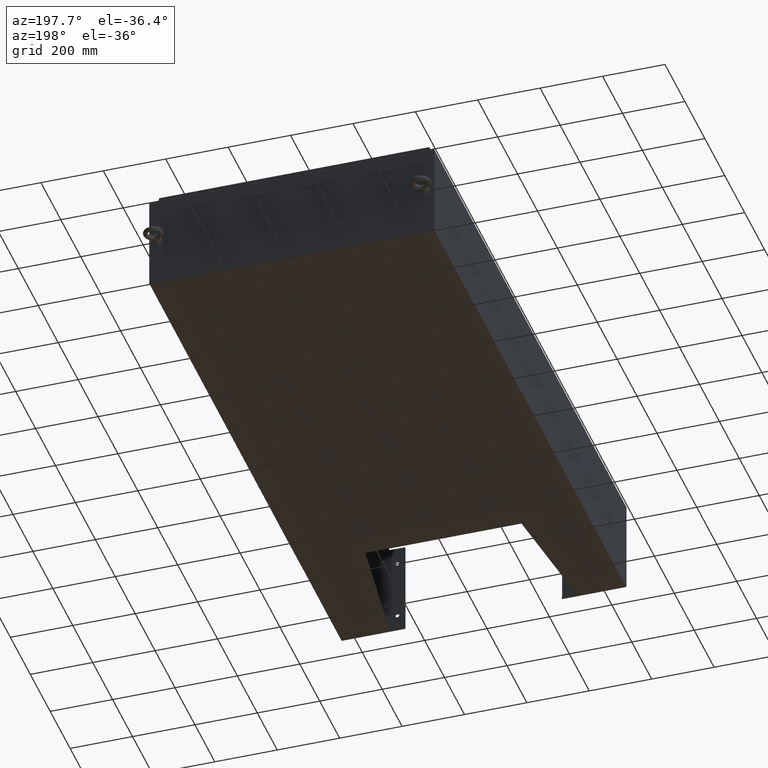
[diagram: clean part render]
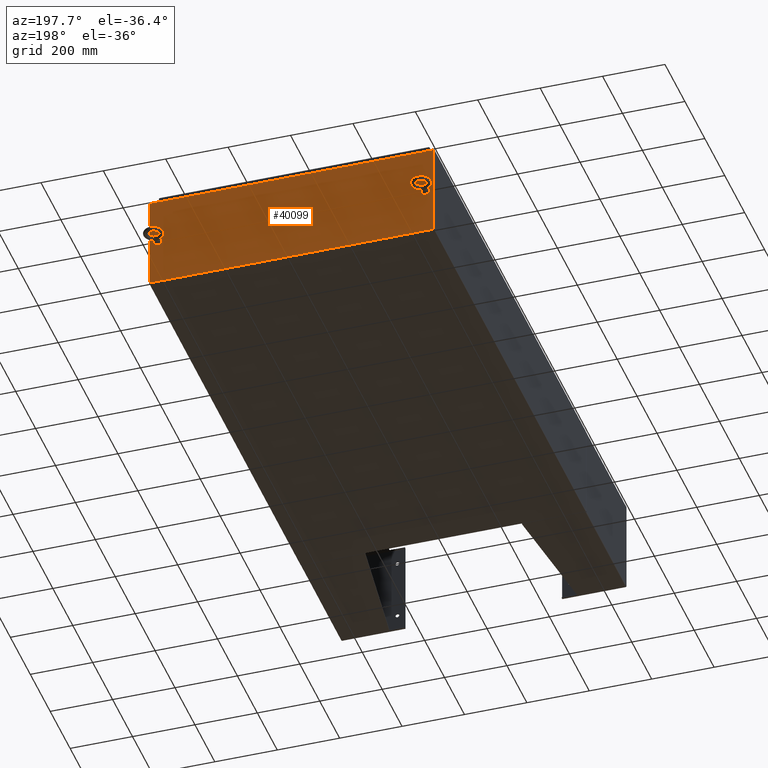
[diagram: same view with one face highlighted and labeled with its STEP entity id]
A machine part, auxiliary view. The second image highlights one B-rep face of the part: STEP entity #40099.
In plain terms, the highlighted planar face has unit normal (0, -1, 0).
Its self-contained STEP definition (entity closure, byte-faithful):
#613 = LINE ( 'NONE', #57201, #60344 ) ;
#780 = CARTESIAN_POINT ( 'NONE',  ( 17.92530000000000400, 0.0000000000000000000, 5.925300000000000000 ) ) ;
#1128 = VECTOR ( 'NONE', #13163, 39.37007874015748100 ) ;
#1379 = CARTESIAN_POINT ( 'NONE',  ( 16.67455000000000400, 0.0000000000000000000, 5.874949999999999200 ) ) ;
#1409 = DIRECTION ( 'NONE',  ( 0.0000000000000000000, 0.0000000000000000000, -1.000000000000000000 ) ) ;
#1535 = DIRECTION ( 'NONE',  ( 0.0000000000000000000, 1.000000000000000000, 0.0000000000000000000 ) ) ;
#3428 = VERTEX_POINT ( 'NONE', #60500 ) ;
#4279 = VERTEX_POINT ( 'NONE', #32076 ) ;
#4826 = VERTEX_POINT ( 'NONE', #59489 ) ;
#4992 = CIRCLE ( 'NONE', #31853, 0.3750000000000008300 ) ;
#5187 = VECTOR ( 'NONE', #40311, 39.37007874015748100 ) ;
#5265 = DIRECTION ( 'NONE',  ( 0.0000000000000000000, 1.000000000000000000, 0.0000000000000000000 ) ) ;
#5273 = VECTOR ( 'NONE', #43092, 39.37007874015748100 ) ;
#5606 = EDGE_CURVE ( 'NONE', #31988, #51643, #57943, .T. ) ;
#6466 = CARTESIAN_POINT ( 'NONE',  ( -17.92529999999999600, 0.0000000000000000000, 5.925299999999999100 ) ) ;
#6695 = CARTESIAN_POINT ( 'NONE',  ( -16.63720000000000000, 3.756290991288361700E-016, 5.912299999999999200 ) ) ;
#8978 = ORIENTED_EDGE ( 'NONE', *, *, #50636, .F. ) ;
#9796 = ORIENTED_EDGE ( 'NONE', *, *, #14744, .F. ) ;
#10918 = LINE ( 'NONE', #16049, #47945 ) ;
#10981 = CARTESIAN_POINT ( 'NONE',  ( 0.0000000000000000000, 0.0000000000000000000, 0.0000000000000000000 ) ) ;
#11108 = CARTESIAN_POINT ( 'NONE',  ( 16.63720000000000400, 0.0000000000000000000, 5.912299999999999200 ) ) ;
#11382 = CARTESIAN_POINT ( 'NONE',  ( -16.67455000000000000, 0.0000000000000000000, 5.925299999999999100 ) ) ;
#11683 = VERTEX_POINT ( 'NONE', #48834 ) ;
#12011 = DIRECTION ( 'NONE',  ( 0.0000000000000000000, 0.0000000000000000000, 1.000000000000000000 ) ) ;
#13163 = DIRECTION ( 'NONE',  ( -0.0000000000000000000, -0.0000000000000000000, 1.000000000000000000 ) ) ;
#14129 = DIRECTION ( 'NONE',  ( 0.0000000000000000000, 0.0000000000000000000, -1.000000000000000000 ) ) ;
#14744 = EDGE_CURVE ( 'NONE', #52302, #53804, #35376, .T. ) ;
#15441 = CARTESIAN_POINT ( 'NONE',  ( -17.92529999999999600, 0.0000000000000000000, 5.925299999999999100 ) ) ;
#16049 = CARTESIAN_POINT ( 'NONE',  ( -16.63720000000000000, -0.0000000000000000000, 0.0000000000000000000 ) ) ;
#16328 = EDGE_CURVE ( 'NONE', #17642, #3428, #61332, .T. ) ;
#16508 = AXIS2_PLACEMENT_3D ( 'NONE', #23184, #56963, #28028 ) ;
#17134 = ORIENTED_EDGE ( 'NONE', *, *, #59123, .F. ) ;
#17541 = CIRCLE ( 'NONE', #16508, 0.01867499999999949400 ) ;
#17642 = VERTEX_POINT ( 'NONE', #45359 ) ;
#18305 = VECTOR ( 'NONE', #31083, 39.37007874015748100 ) ;
#18396 = VECTOR ( 'NONE', #50954, 39.37007874015748100 ) ;
#19191 = EDGE_CURVE ( 'NONE', #4826, #60516, #4992, .T. ) ;
#20217 = VERTEX_POINT ( 'NONE', #30301 ) ;
#20489 = ORIENTED_EDGE ( 'NONE', *, *, #52612, .F. ) ;
#21312 = VERTEX_POINT ( 'NONE', #47937 ) ;
#23105 = FACE_OUTER_BOUND ( 'NONE', #48553, .T. ) ;
#23149 = EDGE_CURVE ( 'NONE', #53804, #52302, #38954, .T. ) ;
#23184 = CARTESIAN_POINT ( 'NONE',  ( 16.65587500000000500, 0.0000000000000000000, 5.874949999999999200 ) ) ;
#23998 = CARTESIAN_POINT ( 'NONE',  ( 16.88530000000000100, 0.0000000000000000000, 0.0000000000000000000 ) ) ;
#24036 = CIRCLE ( 'NONE', #61053, 0.01867499999999949400 ) ;
#24248 = DIRECTION ( 'NONE',  ( -0.0000000000000000000, 1.000000000000000000, -0.0000000000000000000 ) ) ;
#25731 = PLANE ( 'NONE',  #56420 ) ;
#26277 = ORIENTED_EDGE ( 'NONE', *, *, #40820, .F. ) ;
#28028 = DIRECTION ( 'NONE',  ( 0.0000000000000000000, 0.0000000000000000000, -1.000000000000000000 ) ) ;
#29704 = DIRECTION ( 'NONE',  ( 0.0000000000000000000, 0.0000000000000000000, 1.000000000000000000 ) ) ;
#30301 = CARTESIAN_POINT ( 'NONE',  ( -16.67455000000000000, 0.0000000000000000000, 5.874949999999999200 ) ) ;
#30637 = DIRECTION ( 'NONE',  ( 0.0000000000000000000, -0.0000000000000000000, -1.000000000000000000 ) ) ;
#30973 = LINE ( 'NONE', #6466, #5187 ) ;
#31056 = LINE ( 'NONE', #47947, #5273 ) ;
#31083 = DIRECTION ( 'NONE',  ( 0.0000000000000000000, 0.0000000000000000000, 1.000000000000000000 ) ) ;
#31115 = VECTOR ( 'NONE', #49311, 39.37007874015748100 ) ;
#31673 = EDGE_CURVE ( 'NONE', #17642, #54940, #31056, .T. ) ;
#31782 = CARTESIAN_POINT ( 'NONE',  ( -17.92529999999999600, 0.0000000000000000000, 5.925299999999999100 ) ) ;
#31853 = AXIS2_PLACEMENT_3D ( 'NONE', #44723, #55668, #29704 ) ;
#31988 = VERTEX_POINT ( 'NONE', #6695 ) ;
#32076 = CARTESIAN_POINT ( 'NONE',  ( 17.92530000000000400, 0.0000000000000000000, -5.925300000000000000 ) ) ;
#32921 = ORIENTED_EDGE ( 'NONE', *, *, #19191, .F. ) ;
#33320 = DIRECTION ( 'NONE',  ( 0.0000000000000000000, 0.0000000000000000000, 1.000000000000000000 ) ) ;
#33444 = VERTEX_POINT ( 'NONE', #11382 ) ;
#34092 = AXIS2_PLACEMENT_3D ( 'NONE', #23998, #58276, #12011 ) ;
#34283 = CARTESIAN_POINT ( 'NONE',  ( -16.88529999999999700, 0.0000000000000000000, -5.533055694631047000E-017 ) ) ;
#35376 = CIRCLE ( 'NONE', #34092, 0.3750000000000008300 ) ;
#35386 = CARTESIAN_POINT ( 'NONE',  ( 16.88530000000000100, 0.0000000000000000000, 0.0000000000000000000 ) ) ;
#35964 = FACE_BOUND ( 'NONE', #46091, .T. ) ;
#37349 = LINE ( 'NONE', #780, #48662 ) ;
#37476 = EDGE_CURVE ( 'NONE', #21312, #51643, #613, .T. ) ;
#37545 = EDGE_LOOP ( 'NONE', ( #9796, #56628 ) ) ;
#37662 = AXIS2_PLACEMENT_3D ( 'NONE', #35386, #1535, #49723 ) ;
#38954 = CIRCLE ( 'NONE', #37662, 0.3750000000000008300 ) ;
#39111 = DIRECTION ( 'NONE',  ( 0.0000000000000000000, 0.0000000000000000000, 1.000000000000000000 ) ) ;
#39719 = LINE ( 'NONE', #56651, #1128 ) ;
#40099 = ADVANCED_FACE ( 'NONE', ( #47258, #35964, #23105 ), #25731, .F. ) ;
#40311 = DIRECTION ( 'NONE',  ( 1.000000000000000000, 0.0000000000000000000, 3.048036009064577000E-017 ) ) ;
#40820 = EDGE_CURVE ( 'NONE', #31988, #11683, #10918, .T. ) ;
#41995 = CARTESIAN_POINT ( 'NONE',  ( -16.63720000000000000, 3.756290991288361700E-016, 5.912299999999999200 ) ) ;
#42477 = LINE ( 'NONE', #60018, #18305 ) ;
#43092 = DIRECTION ( 'NONE',  ( -8.681145560799821800E-014, 0.0000000000000000000, -1.000000000000000000 ) ) ;
#44126 = CARTESIAN_POINT ( 'NONE',  ( -16.88529999999999700, 0.0000000000000000000, 0.3750000000000007800 ) ) ;
#44238 = EDGE_CURVE ( 'NONE', #52983, #56198, #39719, .T. ) ;
#44581 = ORIENTED_EDGE ( 'NONE', *, *, #31673, .F. ) ;
#44723 = CARTESIAN_POINT ( 'NONE',  ( -16.88529999999999700, 0.0000000000000000000, -5.533055694631047000E-017 ) ) ;
#45027 = EDGE_CURVE ( 'NONE', #3428, #4279, #37349, .T. ) ;
#45130 = VECTOR ( 'NONE', #61416, 39.37007874015748100 ) ;
#45359 = CARTESIAN_POINT ( 'NONE',  ( 16.67455000000000700, 0.0000000000000000000, 5.925300000000000000 ) ) ;
#45463 = ORIENTED_EDGE ( 'NONE', *, *, #16328, .T. ) ;
#46091 = EDGE_LOOP ( 'NONE', ( #17134, #32921 ) ) ;
#46114 = CARTESIAN_POINT ( 'NONE',  ( -17.92529999999999600, 0.0000000000000000000, -5.925300000000000000 ) ) ;
#47258 = FACE_BOUND ( 'NONE', #37545, .T. ) ;
#47914 = ORIENTED_EDGE ( 'NONE', *, *, #55735, .T. ) ;
#47937 = CARTESIAN_POINT ( 'NONE',  ( 16.63720000000000400, 0.0000000000000000000, 5.874949999999999200 ) ) ;
#47945 = VECTOR ( 'NONE', #1409, 39.37007874015748100 ) ;
#47947 = CARTESIAN_POINT ( 'NONE',  ( 16.67454999999949500, -0.0000000000000000000, -1.447541957108302900E-012 ) ) ;
#48553 = EDGE_LOOP ( 'NONE', ( #57966, #20489, #26277, #56135, #52454, #8978, #44581, #45463, #57739, #47914, #56201, #59124 ) ) ;
#48662 = VECTOR ( 'NONE', #14129, 39.37007874015748100 ) ;
#48834 = CARTESIAN_POINT ( 'NONE',  ( -16.63720000000000000, -0.0000000000000000000, 5.874949999999999200 ) ) ;
#49311 = DIRECTION ( 'NONE',  ( 1.000000000000000000, 0.0000000000000000000, 3.048036009064577000E-017 ) ) ;
#49723 = DIRECTION ( 'NONE',  ( 0.0000000000000000000, 0.0000000000000000000, 1.000000000000000000 ) ) ;
#50294 = CARTESIAN_POINT ( 'NONE',  ( 16.88530000000000100, 0.0000000000000000000, 0.3750000000000008300 ) ) ;
#50632 = CARTESIAN_POINT ( 'NONE',  ( -17.92529999999999600, 0.0000000000000000000, -5.925300000000000000 ) ) ;
#50636 = EDGE_CURVE ( 'NONE', #54940, #21312, #17541, .T. ) ;
#50954 = DIRECTION ( 'NONE',  ( -1.000000000000000000, -0.0000000000000000000, -0.0000000000000000000 ) ) ;
#51643 = VERTEX_POINT ( 'NONE', #11108 ) ;
#52302 = VERTEX_POINT ( 'NONE', #50294 ) ;
#52454 = ORIENTED_EDGE ( 'NONE', *, *, #37476, .F. ) ;
#52612 = EDGE_CURVE ( 'NONE', #11683, #20217, #24036, .T. ) ;
#52983 = VERTEX_POINT ( 'NONE', #50632 ) ;
#53195 = CARTESIAN_POINT ( 'NONE',  ( -16.65587499999999800, 0.0000000000000000000, 5.874949999999999200 ) ) ;
#53804 = VERTEX_POINT ( 'NONE', #54523 ) ;
#54523 = CARTESIAN_POINT ( 'NONE',  ( 16.88530000000000100, 0.0000000000000000000, -0.3750000000000008300 ) ) ;
#54940 = VERTEX_POINT ( 'NONE', #1379 ) ;
#55668 = DIRECTION ( 'NONE',  ( 0.0000000000000000000, 1.000000000000000000, 0.0000000000000000000 ) ) ;
#55735 = EDGE_CURVE ( 'NONE', #4279, #52983, #56904, .T. ) ;
#56087 = CIRCLE ( 'NONE', #61268, 0.3750000000000008300 ) ;
#56135 = ORIENTED_EDGE ( 'NONE', *, *, #5606, .T. ) ;
#56198 = VERTEX_POINT ( 'NONE', #15441 ) ;
#56201 = ORIENTED_EDGE ( 'NONE', *, *, #44238, .T. ) ;
#56420 = AXIS2_PLACEMENT_3D ( 'NONE', #10981, #59552, #30637 ) ;
#56628 = ORIENTED_EDGE ( 'NONE', *, *, #23149, .F. ) ;
#56651 = CARTESIAN_POINT ( 'NONE',  ( -17.92529999999999600, 0.0000000000000000000, 5.925299999999999100 ) ) ;
#56904 = LINE ( 'NONE', #46114, #18396 ) ;
#56963 = DIRECTION ( 'NONE',  ( -0.0000000000000000000, 1.000000000000000000, -0.0000000000000000000 ) ) ;
#57201 = CARTESIAN_POINT ( 'NONE',  ( 16.63720000000000400, 0.0000000000000000000, 0.0000000000000000000 ) ) ;
#57739 = ORIENTED_EDGE ( 'NONE', *, *, #45027, .T. ) ;
#57943 = LINE ( 'NONE', #41995, #45130 ) ;
#57966 = ORIENTED_EDGE ( 'NONE', *, *, #59352, .F. ) ;
#58060 = DIRECTION ( 'NONE',  ( 0.0000000000000000000, 0.0000000000000000000, -1.000000000000000000 ) ) ;
#58276 = DIRECTION ( 'NONE',  ( 0.0000000000000000000, 1.000000000000000000, 0.0000000000000000000 ) ) ;
#59123 = EDGE_CURVE ( 'NONE', #60516, #4826, #56087, .T. ) ;
#59124 = ORIENTED_EDGE ( 'NONE', *, *, #60639, .T. ) ;
#59352 = EDGE_CURVE ( 'NONE', #20217, #33444, #42477, .T. ) ;
#59489 = CARTESIAN_POINT ( 'NONE',  ( -16.88529999999999700, 0.0000000000000000000, -0.3750000000000009400 ) ) ;
#59552 = DIRECTION ( 'NONE',  ( 0.0000000000000000000, -1.000000000000000000, 0.0000000000000000000 ) ) ;
#60018 = CARTESIAN_POINT ( 'NONE',  ( -16.67455000000000000, -0.0000000000000000000, 0.0000000000000000000 ) ) ;
#60344 = VECTOR ( 'NONE', #33320, 39.37007874015748100 ) ;
#60500 = CARTESIAN_POINT ( 'NONE',  ( 17.92530000000000400, 0.0000000000000000000, 5.925300000000000000 ) ) ;
#60516 = VERTEX_POINT ( 'NONE', #44126 ) ;
#60639 = EDGE_CURVE ( 'NONE', #56198, #33444, #30973, .T. ) ;
#61053 = AXIS2_PLACEMENT_3D ( 'NONE', #53195, #24248, #58060 ) ;
#61268 = AXIS2_PLACEMENT_3D ( 'NONE', #34283, #5265, #39111 ) ;
#61332 = LINE ( 'NONE', #31782, #31115 ) ;
#61416 = DIRECTION ( 'NONE',  ( 1.000000000000000000, 0.0000000000000000000, 0.0000000000000000000 ) ) ;